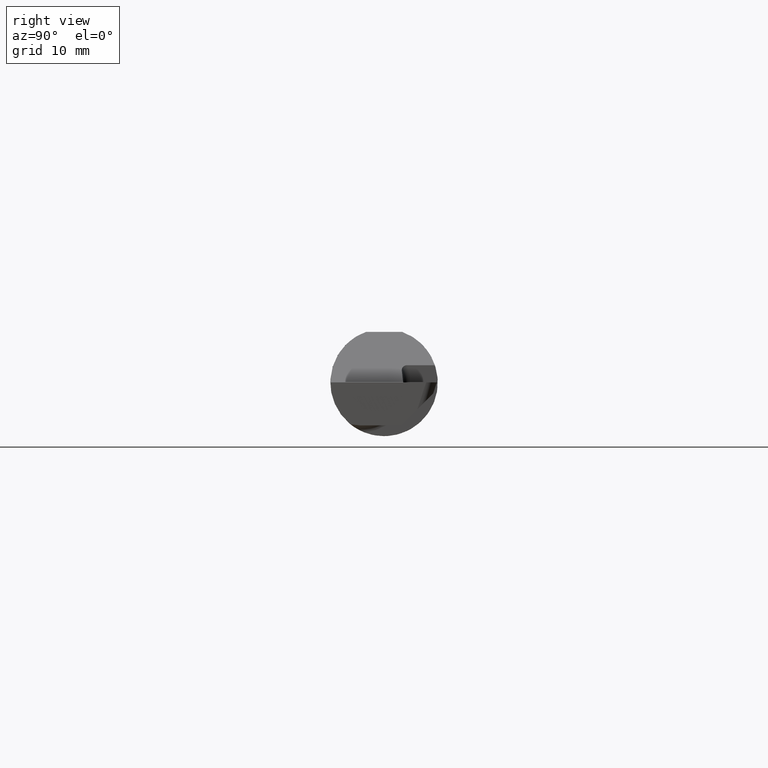
[diagram: clean part render]
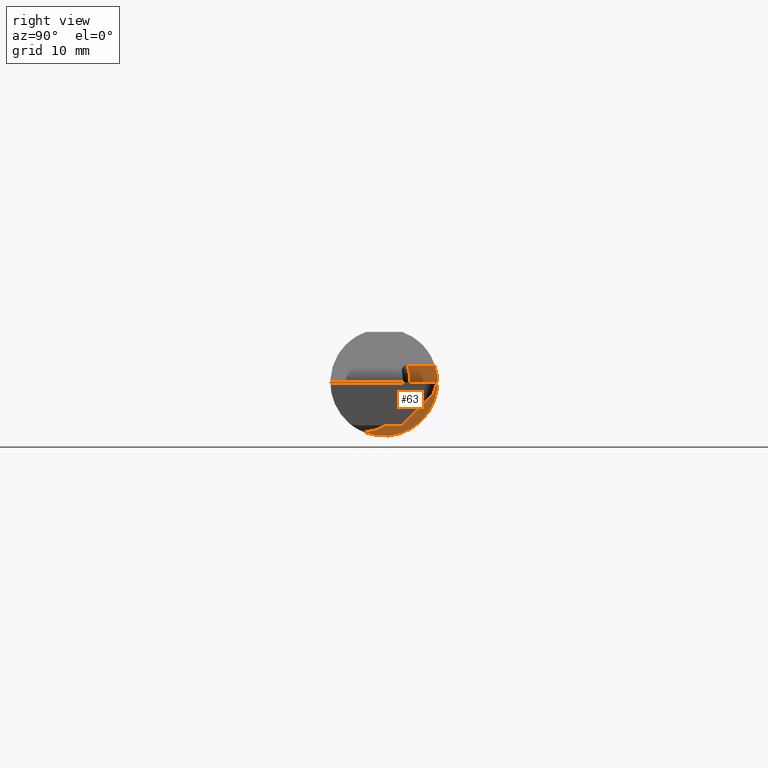
[diagram: same view with one face highlighted and labeled with its STEP entity id]
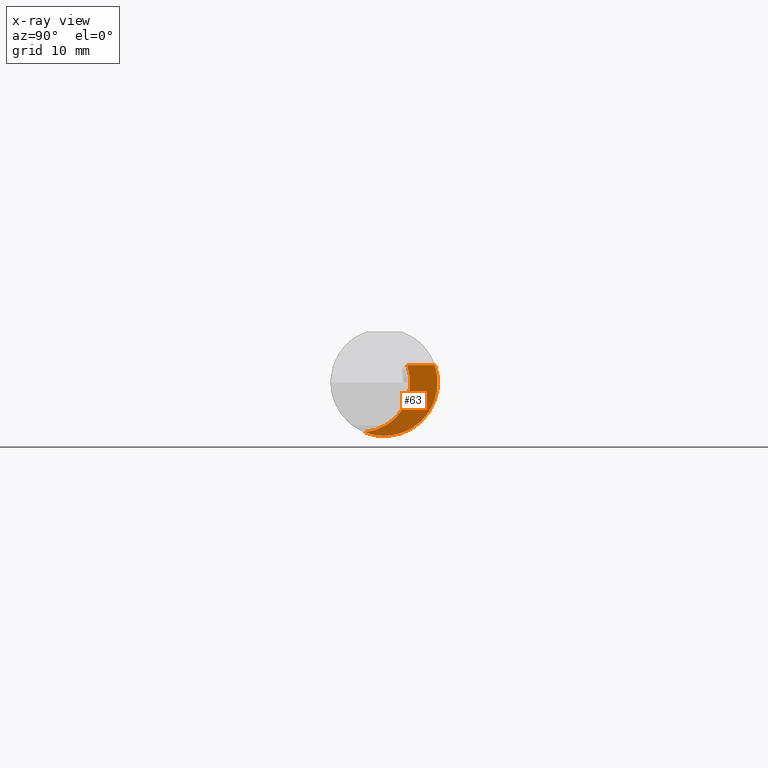
[diagram: x-ray of the same camera — body ghosted, the highlighted face saturated]
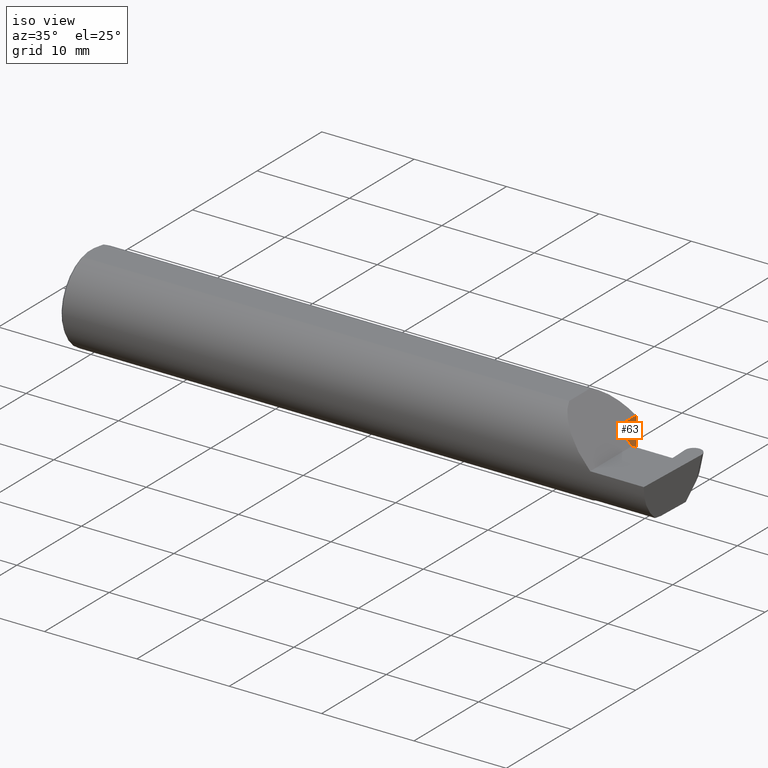
[diagram: same view with one face highlighted and labeled with its STEP entity id]
A machine part, right view. The second image highlights one B-rep face of the part: STEP entity #63.
The next image is the same camera in x-ray: the body ghosted, the highlighted face saturated — about 0% of this face is hidden behind the body in this view.
A second angle (iso view) of the same face is appended — the face is thin or edge-on in the first view.
In plain terms, the highlighted planar face has unit normal (1, 0, 0).
Its self-contained STEP definition (entity closure, byte-faithful):
#4 = EDGE_CURVE ( 'NONE', #346, #703, #574, .T. ) ;
#12 = FACE_OUTER_BOUND ( 'NONE', #36, .T. ) ;
#27 = DIRECTION ( 'NONE',  ( 0.000000000000000000, -1.000000000000000000, 0.000000000000000000 ) ) ;
#36 = EDGE_LOOP ( 'NONE', ( #571, #546, #706 ) ) ;
#38 = CARTESIAN_POINT ( 'NONE',  ( 2.200000000000000178, -0.08335000000000011844, 0.000000000000000000 ) ) ;
#62 = DIRECTION ( 'NONE',  ( 1.000000000000000000, 5.199944350551892858E-16, 0.000000000000000000 ) ) ;
#63 = ADVANCED_FACE ( 'NONE', ( #12 ), #403, .T. ) ;
#65 = CARTESIAN_POINT ( 'NONE',  ( 2.200000000000000178, -0.2500000000000001110, 0.05999999999999938716 ) ) ;
#68 = CIRCLE ( 'NONE', #345, 0.1750000000000001277 ) ;
#127 = EDGE_CURVE ( 'NONE', #703, #503, #68, .T. ) ;
#156 = CARTESIAN_POINT ( 'NONE',  ( 2.200000000000000178, 0.08104282222773613598, 0.05999999999999955369 ) ) ;
#189 = CARTESIAN_POINT ( 'NONE',  ( 2.200000000000000178, -0.06851976604679038685, -0.1743704796142199753 ) ) ;
#283 = CARTESIAN_POINT ( 'NONE',  ( 2.200000000000000178, 0.1774824568795465018, 0.05999999999999960920 ) ) ;
#295 = DIRECTION ( 'NONE',  ( 5.199944350551892858E-16, -1.000000000000000000, -5.199944350551842568E-16 ) ) ;
#307 = AXIS2_PLACEMENT_3D ( 'NONE', #615, #62, #623 ) ;
#345 = AXIS2_PLACEMENT_3D ( 'NONE', #38, #533, #27 ) ;
#346 = VERTEX_POINT ( 'NONE', #283 ) ;
#403 = PLANE ( 'NONE',  #307 ) ;
#415 = DIRECTION ( 'NONE',  ( 1.000000000000000000, 5.199944350551892858E-16, 0.000000000000000000 ) ) ;
#423 = CIRCLE ( 'NONE', #501, 0.1873499999999999888 ) ;
#501 = AXIS2_PLACEMENT_3D ( 'NONE', #689, #415, #529 ) ;
#503 = VERTEX_POINT ( 'NONE', #189 ) ;
#529 = DIRECTION ( 'NONE',  ( 0.000000000000000000, 1.000000000000000000, 0.000000000000000000 ) ) ;
#533 = DIRECTION ( 'NONE',  ( -1.000000000000000000, -5.199944350551892858E-16, -0.000000000000000000 ) ) ;
#546 = ORIENTED_EDGE ( 'NONE', *, *, #4, .T. ) ;
#571 = ORIENTED_EDGE ( 'NONE', *, *, #581, .T. ) ;
#574 = LINE ( 'NONE', #65, #641 ) ;
#581 = EDGE_CURVE ( 'NONE', #503, #346, #423, .T. ) ;
#615 = CARTESIAN_POINT ( 'NONE',  ( 2.200000000000000178, 0.1873499999999999888, 0.000000000000000000 ) ) ;
#623 = DIRECTION ( 'NONE',  ( -5.199944350551892858E-16, 1.000000000000000000, 0.000000000000000000 ) ) ;
#641 = VECTOR ( 'NONE', #295, 39.37007874015748143 ) ;
#689 = CARTESIAN_POINT ( 'NONE',  ( 2.200000000000000178, 0.000000000000000000, 0.000000000000000000 ) ) ;
#703 = VERTEX_POINT ( 'NONE', #156 ) ;
#706 = ORIENTED_EDGE ( 'NONE', *, *, #127, .T. ) ;